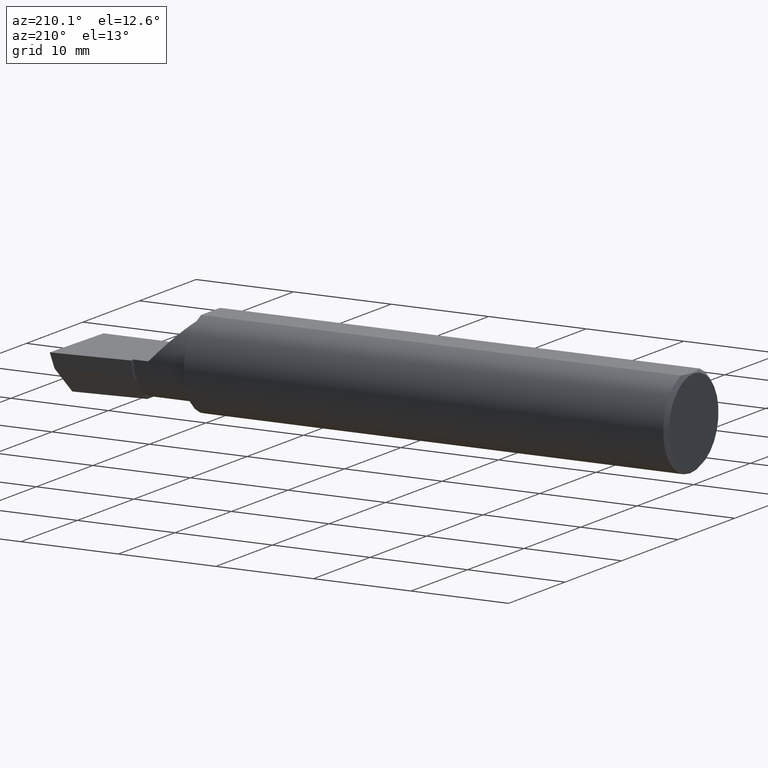
[diagram: clean part render]
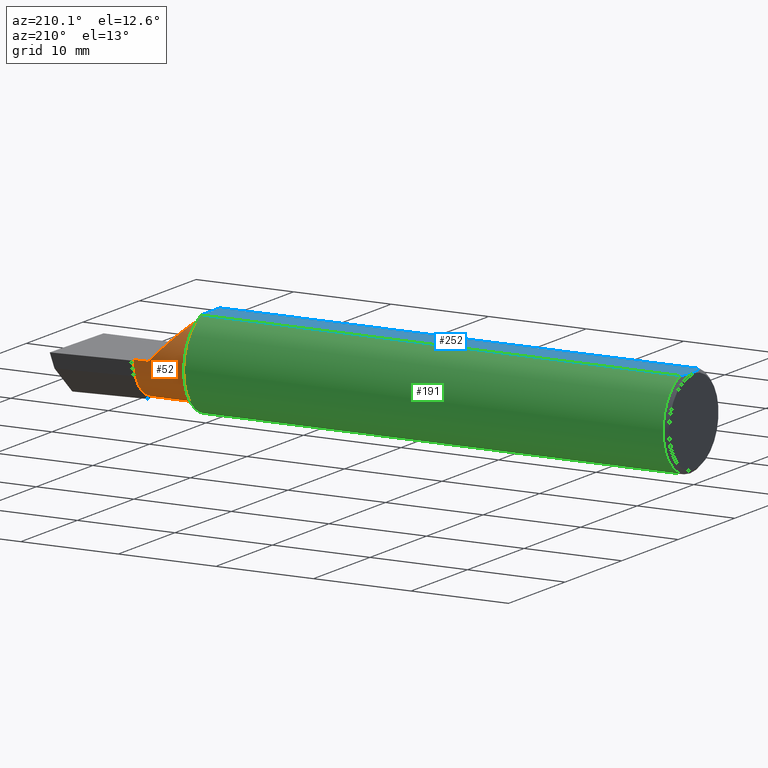
[diagram: same view with three faces highlighted in distinct colors, each labeled with its STEP entity id]
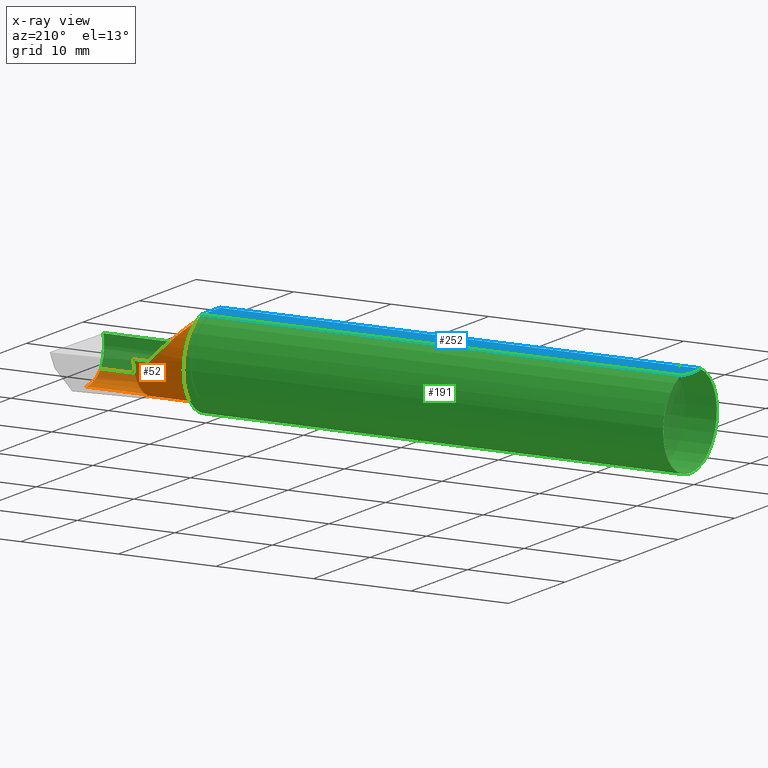
[diagram: x-ray of the same camera — body ghosted, the three highlighted faces saturated]
A machine part, auxiliary view with three faces highlighted in distinct colors.
The next image is the same camera in x-ray (body ghosted, the three faces saturated) — at least one of them is partly hidden behind the body in this view.
Their STEP definitions:

[orange] entity #52 — the highlighted cylindrical surface (partial cylindrical patch) has radius 4.0653 mm, axis along (-1, 0, -0).
#4 = DIRECTION ( 'NONE',  ( -6.829619984160658816E-18, -1.000000000000000000, 0.0000000000000000000 ) ) ;
#8 = EDGE_LOOP ( 'NONE', ( #43, #38, #304, #400, #542, #413, #258, #424, #107, #454 ) ) ;
#9 = VERTEX_POINT ( 'NONE', #123 ) ;
#11 = LINE ( 'NONE', #372, #162 ) ;
#31 = EDGE_CURVE ( 'NONE', #9, #97, #578, .T. ) ;
#38 = ORIENTED_EDGE ( 'NONE', *, *, #115, .T. ) ;
#43 = ORIENTED_EDGE ( 'NONE', *, *, #337, .F. ) ;
#47 = LINE ( 'NONE', #71, #171 ) ;
#52 = ADVANCED_FACE ( 'NONE', ( #533 ), #559, .T. ) ;
#56 = DIRECTION ( 'NONE',  ( 0.0000000000000000000, -1.000000000000000000, 0.0000000000000000000 ) ) ;
#71 = CARTESIAN_POINT ( 'NONE',  ( 1.093080678464946939E-18, 0.1226499999999999535, 3.267291166268304703E-16 ) ) ;
#79 = CARTESIAN_POINT ( 'NONE',  ( 2.474893613600468445, -0.03740000000000000269, -0.1600499999999999701 ) ) ;
#81 = CARTESIAN_POINT ( 'NONE',  ( 2.075000000000000178, -0.1454917112299465021, -0.1180346748349054287 ) ) ;
#97 = VERTEX_POINT ( 'NONE', #287 ) ;
#99 = VERTEX_POINT ( 'NONE', #111 ) ;
#106 = VERTEX_POINT ( 'NONE', #116 ) ;
#107 = ORIENTED_EDGE ( 'NONE', *, *, #331, .T. ) ;
#111 = CARTESIAN_POINT ( 'NONE',  ( 2.189999999999999947, 0.1226499999999999674, 3.267291166268305196E-16 ) ) ;
#115 = EDGE_CURVE ( 'NONE', #106, #264, #405, .T. ) ;
#116 = CARTESIAN_POINT ( 'NONE',  ( 2.477223734188808368, -0.1454917112299465021, -0.1180346748349054287 ) ) ;
#119 = VECTOR ( 'NONE', #355, 39.37007874015748143 ) ;
#123 = CARTESIAN_POINT ( 'NONE',  ( 2.474893613600468445, -0.03740000000000000269, -0.1600499999999999701 ) ) ;
#128 = CARTESIAN_POINT ( 'NONE',  ( 1.902393788885672565, -0.02584108761840661975, 0.2276062111143251077 ) ) ;
#130 = CARTESIAN_POINT ( 'NONE',  ( 1.959999999999999964, -0.1454917112299459747, -0.1180346748349059005 ) ) ;
#140 = CARTESIAN_POINT ( 'NONE',  ( 0.0000000000000000000, -0.03739999999999998881, 0.0000000000000000000 ) ) ;
#145 = CIRCLE ( 'NONE', #490, 0.1600499999999999701 ) ;
#162 = VECTOR ( 'NONE', #448, 39.37007874015748143 ) ;
#163 = DIRECTION ( 'NONE',  ( 0.0000000000000000000, -1.000000000000000000, 0.0000000000000000000 ) ) ;
#171 = VECTOR ( 'NONE', #297, 39.37007874015748143 ) ;
#176 = DIRECTION ( 'NONE',  ( -1.000000000000000000, 6.829619984160658046E-18, -0.0000000000000000000 ) ) ;
#182 = CARTESIAN_POINT ( 'NONE',  ( 2.189999999999999947, 0.09838681685089194218, -0.08472274115904374070 ) ) ;
#185 = VERTEX_POINT ( 'NONE', #230 ) ;
#210 = AXIS2_PLACEMENT_3D ( 'NONE', #140, #515, #4 ) ;
#218 = VERTEX_POINT ( 'NONE', #301 ) ;
#222 = CARTESIAN_POINT ( 'NONE',  ( 2.189999999999999947, -0.03740000000000000269, 0.0000000000000000000 ) ) ;
#230 = CARTESIAN_POINT ( 'NONE',  ( 2.189999999999999947, 0.05139684578702525403, -0.1331582617725060591 ) ) ;
#241 = CARTESIAN_POINT ( 'NONE',  ( 1.967758842172324663, 0.1226499999999999674, 0.1622411578276735378 ) ) ;
#244 = CIRCLE ( 'NONE', #473, 0.1600499999999999701 ) ;
#257 = EDGE_CURVE ( 'NONE', #218, #375, #547, .T. ) ;
#258 = ORIENTED_EDGE ( 'NONE', *, *, #294, .T. ) ;
#264 = VERTEX_POINT ( 'NONE', #130 ) ;
#272 = CARTESIAN_POINT ( 'NONE',  ( 1.959999999999999964, -0.1454917112299459192, 0.1180346748349059144 ) ) ;
#282 = DIRECTION ( 'NONE',  ( -1.000000000000000000, 5.691349986800549142E-18, -0.0000000000000000000 ) ) ;
#287 = CARTESIAN_POINT ( 'NONE',  ( 2.189999999999999947, -0.03740000000000000269, -0.1600499999999999701 ) ) ;
#291 =( BOUNDED_CURVE ( )  B_SPLINE_CURVE ( 3, ( #530, #512, #550, #79 ),
 .UNSPECIFIED., .F., .F. ) 
 B_SPLINE_CURVE_WITH_KNOTS ( ( 4, 4 ),
 ( 5.751779107031791405, 6.493234751459990406 ),
 .UNSPECIFIED. ) 
 CURVE ( )  GEOMETRIC_REPRESENTATION_ITEM ( )  RATIONAL_B_SPLINE_CURVE ( ( 1.000000000000000000, 0.9547092712975354667, 0.9547092712975354667, 1.000000000000000000 ) ) 
 REPRESENTATION_ITEM ( '' )  );
#292 = EDGE_CURVE ( 'NONE', #375, #99, #47, .T. ) ;
#294 = EDGE_CURVE ( 'NONE', #99, #587, #358, .T. ) ;
#297 = DIRECTION ( 'NONE',  ( 1.000000000000000000, -6.829619984160658046E-18, 0.0000000000000000000 ) ) ;
#301 = CARTESIAN_POINT ( 'NONE',  ( 2.011965325165096630, -0.1454917112299495829, 0.1180346748349020841 ) ) ;
#304 = ORIENTED_EDGE ( 'NONE', *, *, #421, .F. ) ;
#322 = EDGE_CURVE ( 'NONE', #185, #587, #244, .T. ) ;
#324 = AXIS2_PLACEMENT_3D ( 'NONE', #584, #496, #56 ) ;
#331 = EDGE_CURVE ( 'NONE', #185, #97, #145, .T. ) ;
#337 = EDGE_CURVE ( 'NONE', #106, #9, #291, .T. ) ;
#355 = DIRECTION ( 'NONE',  ( -1.000000000000000000, 6.829619984160658046E-18, -0.0000000000000000000 ) ) ;
#358 = CIRCLE ( 'NONE', #585, 0.1600499999999999701 ) ;
#362 = DIRECTION ( 'NONE',  ( 0.0000000000000000000, -1.000000000000000000, 0.0000000000000000000 ) ) ;
#372 = CARTESIAN_POINT ( 'NONE',  ( 2.075000000000000178, -0.1454917112299465021, 0.1180346748349054287 ) ) ;
#375 = VERTEX_POINT ( 'NONE', #543 ) ;
#384 = CARTESIAN_POINT ( 'NONE',  ( 2.129999999999999893, 0.1226499999999998841, 1.065442715258197396E-16 ) ) ;
#400 = ORIENTED_EDGE ( 'NONE', *, *, #566, .T. ) ;
#405 = LINE ( 'NONE', #81, #119 ) ;
#413 = ORIENTED_EDGE ( 'NONE', *, *, #292, .T. ) ;
#415 = CARTESIAN_POINT ( 'NONE',  ( 2.011965325165096630, -0.1454917112299495829, 0.1180346748349020841 ) ) ;
#421 = EDGE_CURVE ( 'NONE', #451, #264, #468, .T. ) ;
#422 = CARTESIAN_POINT ( 'NONE',  ( 2.189999999999999947, -0.03740000000000000269, 0.0000000000000000000 ) ) ;
#424 = ORIENTED_EDGE ( 'NONE', *, *, #322, .F. ) ;
#448 = DIRECTION ( 'NONE',  ( 1.000000000000000000, -6.829619984160658046E-18, 0.0000000000000000000 ) ) ;
#451 = VERTEX_POINT ( 'NONE', #272 ) ;
#454 = ORIENTED_EDGE ( 'NONE', *, *, #31, .F. ) ;
#464 = CARTESIAN_POINT ( 'NONE',  ( 2.500000000000000000, -0.03740000000000000269, -0.1600499999999999701 ) ) ;
#466 = CARTESIAN_POINT ( 'NONE',  ( 2.189999999999999947, -0.03740000000000000269, 0.0000000000000000000 ) ) ;
#468 = CIRCLE ( 'NONE', #324, 0.1600499999999999701 ) ;
#473 = AXIS2_PLACEMENT_3D ( 'NONE', #466, #494, #480 ) ;
#480 = DIRECTION ( 'NONE',  ( 0.0000000000000000000, -1.000000000000000000, 2.664535259100375697E-15 ) ) ;
#490 = AXIS2_PLACEMENT_3D ( 'NONE', #422, #590, #163 ) ;
#494 = DIRECTION ( 'NONE',  ( 1.000000000000000000, -6.829619984160658046E-18, 0.0000000000000000000 ) ) ;
#496 = DIRECTION ( 'NONE',  ( -1.000000000000000000, 6.829619984160658046E-18, -0.0000000000000000000 ) ) ;
#512 = CARTESIAN_POINT ( 'NONE',  ( 2.474646882977779683, -0.1156304438478837071, -0.1453804992321581779 ) ) ;
#515 = DIRECTION ( 'NONE',  ( -1.000000000000000000, 6.829619984160658046E-18, -0.0000000000000000000 ) ) ;
#530 = CARTESIAN_POINT ( 'NONE',  ( 2.477223734188808368, -0.1454917112299465021, -0.1180346748349054287 ) ) ;
#533 = FACE_OUTER_BOUND ( 'NONE', #8, .T. ) ;
#542 = ORIENTED_EDGE ( 'NONE', *, *, #257, .T. ) ;
#543 = CARTESIAN_POINT ( 'NONE',  ( 2.129999999999999893, 0.1226499999999998841, 1.065442715258197396E-16 ) ) ;
#547 =( BOUNDED_CURVE ( )  B_SPLINE_CURVE ( 3, ( #415, #128, #241, #384 ),
 .UNSPECIFIED., .F., .F. ) 
 B_SPLINE_CURVE_WITH_KNOTS ( ( 4, 4 ),
 ( 5.541729662751357921, 7.853981633974482790 ),
 .UNSPECIFIED. ) 
 CURVE ( )  GEOMETRIC_REPRESENTATION_ITEM ( )  RATIONAL_B_SPLINE_CURVE ( ( 1.000000000000000000, 0.6019254882129634332, 0.6019254882129634332, 1.000000000000000000 ) ) 
 REPRESENTATION_ITEM ( '' )  );
#550 = CARTESIAN_POINT ( 'NONE',  ( 2.473833329693936101, -0.07789060880782651408, -0.1600499999999999701 ) ) ;
#559 = CYLINDRICAL_SURFACE ( 'NONE', #210, 0.1600499999999999701 ) ;
#566 = EDGE_CURVE ( 'NONE', #451, #218, #11, .T. ) ;
#578 = LINE ( 'NONE', #464, #599 ) ;
#584 = CARTESIAN_POINT ( 'NONE',  ( 1.959999999999999964, -0.03740000000000000269, 0.0000000000000000000 ) ) ;
#585 = AXIS2_PLACEMENT_3D ( 'NONE', #222, #176, #362 ) ;
#587 = VERTEX_POINT ( 'NONE', #182 ) ;
#590 = DIRECTION ( 'NONE',  ( -1.000000000000000000, 6.829619984160658046E-18, -0.0000000000000000000 ) ) ;
#599 = VECTOR ( 'NONE', #282, 39.37007874015748143 ) ;

[blue] entity #252 — the highlighted planar face has unit normal (0, -0, -1).
#1 = ORIENTED_EDGE ( 'NONE', *, *, #39, .F. ) ;
#24 = CARTESIAN_POINT ( 'NONE',  ( 0.01125230581755086272, 0.05532998191409922023, 0.1753500000000000059 ) ) ;
#33 = CARTESIAN_POINT ( 'NONE',  ( 0.008244775919947424855, 0.04453482769755855164, 0.1753499999999999504 ) ) ;
#36 = CARTESIAN_POINT ( 'NONE',  ( 2.500000000000000000, 0.2373500000000000332, 0.1753499999999999504 ) ) ;
#39 = EDGE_CURVE ( 'NONE', #553, #524, #259, .T. ) ;
#53 = EDGE_CURVE ( 'NONE', #501, #553, #591, .T. ) ;
#59 = CARTESIAN_POINT ( 'NONE',  ( 0.004115035183746292881, 0.02255629470626744487, 0.1753499999999999781 ) ) ;
#65 = PLANE ( 'NONE',  #85 ) ;
#85 = AXIS2_PLACEMENT_3D ( 'NONE', #36, #406, #142 ) ;
#110 = CARTESIAN_POINT ( 'NONE',  ( 0.01499999999999997863, -0.06597272163553657975, 0.1753499999999999781 ) ) ;
#136 = FACE_OUTER_BOUND ( 'NONE', #486, .T. ) ;
#142 = DIRECTION ( 'NONE',  ( 0.0000000000000000000, 1.000000000000000000, -1.438723400918613551E-16 ) ) ;
#161 = EDGE_CURVE ( 'NONE', #524, #288, #582, .T. ) ;
#178 = LINE ( 'NONE', #213, #276 ) ;
#195 = ORIENTED_EDGE ( 'NONE', *, *, #161, .F. ) ;
#196 = CARTESIAN_POINT ( 'NONE',  ( 0.004093196532652216939, -0.02240707710020816909, 0.1753499999999999504 ) ) ;
#213 = CARTESIAN_POINT ( 'NONE',  ( 0.0000000000000000000, 0.06597272163553663527, 0.1753499999999999781 ) ) ;
#235 = EDGE_CURVE ( 'NONE', #288, #570, #178, .T. ) ;
#249 = CARTESIAN_POINT ( 'NONE',  ( 0.01499999999999999424, 0.06597272163553663527, 0.1753499999999999781 ) ) ;
#252 = ADVANCED_FACE ( 'NONE', ( #136 ), #65, .F. ) ;
#253 = DIRECTION ( 'NONE',  ( -6.829619984160658046E-18, -1.000000000000000000, 1.438723400918613551E-16 ) ) ;
#259 = B_SPLINE_CURVE_WITH_KNOTS ( 'NONE', 3,
 ( #588, #540, #450, #196, #285, #374 ),
 .UNSPECIFIED., .F., .F.,
 ( 4, 2, 4 ),
 ( 0.001779942938356815062, 0.002629978419973711019, 0.003480013901590607410 ),
 .UNSPECIFIED. ) ;
#276 = VECTOR ( 'NONE', #589, 39.37007874015748143 ) ;
#285 = CARTESIAN_POINT ( 'NONE',  ( 0.003000000000000172667, -0.01126410975715121283, 0.1753500000000000059 ) ) ;
#288 = VERTEX_POINT ( 'NONE', #382 ) ;
#363 = CARTESIAN_POINT ( 'NONE',  ( 0.0000000000000000000, -0.06597272163553657975, 0.1753499999999999781 ) ) ;
#370 = CARTESIAN_POINT ( 'NONE',  ( 0.003000000000000169632, 0.01127363201155560934, 0.1753499999999999781 ) ) ;
#374 = CARTESIAN_POINT ( 'NONE',  ( 0.003000000000000218638, 2.334609556160449697E-17, 0.1753499999999999781 ) ) ;
#382 = CARTESIAN_POINT ( 'NONE',  ( 0.01499999999999999424, 0.06597272163553663527, 0.1753499999999999781 ) ) ;
#396 = EDGE_CURVE ( 'NONE', #570, #501, #580, .T. ) ;
#399 = DIRECTION ( 'NONE',  ( -1.000000000000000000, -0.0000000000000000000, -0.0000000000000000000 ) ) ;
#406 = DIRECTION ( 'NONE',  ( 0.0000000000000000000, -1.438723400918613551E-16, -1.000000000000000000 ) ) ;
#439 = CARTESIAN_POINT ( 'NONE',  ( 0.003000000000000218638, 2.334609556160449697E-17, 0.1753499999999999781 ) ) ;
#440 = ORIENTED_EDGE ( 'NONE', *, *, #396, .F. ) ;
#442 = ORIENTED_EDGE ( 'NONE', *, *, #235, .F. ) ;
#450 = CARTESIAN_POINT ( 'NONE',  ( 0.008227791779583789808, -0.04447712204611815878, 0.1753499999999999781 ) ) ;
#485 = VECTOR ( 'NONE', #253, 39.37007874015748143 ) ;
#486 = EDGE_LOOP ( 'NONE', ( #440, #442, #195, #1, #488 ) ) ;
#488 = ORIENTED_EDGE ( 'NONE', *, *, #53, .F. ) ;
#500 = CARTESIAN_POINT ( 'NONE',  ( 1.949999999999999956, 0.06597272163553663527, 0.1753499999999999781 ) ) ;
#501 = VERTEX_POINT ( 'NONE', #572 ) ;
#521 = CARTESIAN_POINT ( 'NONE',  ( 0.003000000000000218638, 2.334609556160449697E-17, 0.1753499999999999781 ) ) ;
#524 = VERTEX_POINT ( 'NONE', #439 ) ;
#540 = CARTESIAN_POINT ( 'NONE',  ( 0.01128414053810044941, -0.05542038647445821781, 0.1753499999999999781 ) ) ;
#553 = VERTEX_POINT ( 'NONE', #110 ) ;
#570 = VERTEX_POINT ( 'NONE', #500 ) ;
#572 = CARTESIAN_POINT ( 'NONE',  ( 1.949999999999999956, -0.06597272163553659363, 0.1753499999999999781 ) ) ;
#580 = LINE ( 'NONE', #592, #485 ) ;
#582 = B_SPLINE_CURVE_WITH_KNOTS ( 'NONE', 3,
 ( #521, #370, #59, #33, #24, #249 ),
 .UNSPECIFIED., .F., .F.,
 ( 4, 2, 4 ),
 ( 0.003480013901590607410, 0.004330767971208083697, 0.005181522040825559984 ),
 .UNSPECIFIED. ) ;
#586 = VECTOR ( 'NONE', #399, 39.37007874015748143 ) ;
#588 = CARTESIAN_POINT ( 'NONE',  ( 0.01499999999999997863, -0.06597272163553657975, 0.1753499999999999781 ) ) ;
#589 = DIRECTION ( 'NONE',  ( 1.000000000000000000, 0.0000000000000000000, 0.0000000000000000000 ) ) ;
#591 = LINE ( 'NONE', #363, #586 ) ;
#592 = CARTESIAN_POINT ( 'NONE',  ( 1.949999999999999956, 0.2373500000000000332, 0.1753499999999999504 ) ) ;

[green] entity #191 — the highlighted cylindrical surface (partial cylindrical patch) has radius 4.7587 mm, axis along (-1, -0, -0).
#11 = LINE ( 'NONE', #372, #162 ) ;
#13 = CARTESIAN_POINT ( 'NONE',  ( 1.958780002058964076, -0.1452129146512406155, 0.1183784924451706522 ) ) ;
#15 = ORIENTED_EDGE ( 'NONE', *, *, #328, .F. ) ;
#18 = CARTESIAN_POINT ( 'NONE',  ( 0.01499999999999999424, 0.0000000000000000000, 0.0000000000000000000 ) ) ;
#32 = CARTESIAN_POINT ( 'NONE',  ( 2.477223734188808368, -0.1454917112299465021, -0.1180346748349054287 ) ) ;
#41 = DIRECTION ( 'NONE',  ( -1.000000000000000000, -0.0000000000000000000, -0.0000000000000000000 ) ) ;
#50 = CARTESIAN_POINT ( 'NONE',  ( 1.957909242887170498, -0.1445870704379410010, -0.1191421054870966528 ) ) ;
#53 = EDGE_CURVE ( 'NONE', #501, #553, #591, .T. ) ;
#54 = CARTESIAN_POINT ( 'NONE',  ( 1.950483388365423787, -0.1180160148311101415, -0.1458664675357417562 ) ) ;
#55 = CARTESIAN_POINT ( 'NONE',  ( 1.959343186359710165, -0.1454917112302220872, 0.1180346748345677127 ) ) ;
#63 = ORIENTED_EDGE ( 'NONE', *, *, #557, .T. ) ;
#64 = ORIENTED_EDGE ( 'NONE', *, *, #189, .F. ) ;
#70 = ORIENTED_EDGE ( 'NONE', *, *, #386, .F. ) ;
#81 = CARTESIAN_POINT ( 'NONE',  ( 2.075000000000000178, -0.1454917112299465021, -0.1180346748349054287 ) ) ;
#86 = CARTESIAN_POINT ( 'NONE',  ( 1.952845212421890020, -0.1330145888620355987, 0.1320338710448782094 ) ) ;
#89 = ORIENTED_EDGE ( 'NONE', *, *, #115, .F. ) ;
#95 = DIRECTION ( 'NONE',  ( 1.000000000000000000, -6.829619984160658046E-18, 0.0000000000000000000 ) ) ;
#102 = CARTESIAN_POINT ( 'NONE',  ( 1.949999999999999956, -0.1013606951871659639, 0.1575627873933893863 ) ) ;
#106 = VERTEX_POINT ( 'NONE', #116 ) ;
#110 = CARTESIAN_POINT ( 'NONE',  ( 0.01499999999999997863, -0.06597272163553657975, 0.1753499999999999781 ) ) ;
#114 = CARTESIAN_POINT ( 'NONE',  ( 1.959999999999999964, -0.1454917112299459192, 0.1180346748349059144 ) ) ;
#115 = EDGE_CURVE ( 'NONE', #106, #264, #405, .T. ) ;
#116 = CARTESIAN_POINT ( 'NONE',  ( 2.477223734188808368, -0.1454917112299465021, -0.1180346748349054287 ) ) ;
#117 = CARTESIAN_POINT ( 'NONE',  ( 0.01499999999999999424, 0.0000000000000000000, 0.0000000000000000000 ) ) ;
#119 = VECTOR ( 'NONE', #355, 39.37007874015748143 ) ;
#122 = CARTESIAN_POINT ( 'NONE',  ( 1.958770022656896037, -0.1452078353828883672, -0.1183847404910809836 ) ) ;
#130 = CARTESIAN_POINT ( 'NONE',  ( 1.959999999999999964, -0.1454917112299459747, -0.1180346748349059005 ) ) ;
#137 = CARTESIAN_POINT ( 'NONE',  ( 1.956664569472227777, -0.1431262185210681326, -0.1208975608635242949 ) ) ;
#148 = CARTESIAN_POINT ( 'NONE',  ( 2.011965325165096630, -0.1454917112299495829, 0.1180346748349020841 ) ) ;
#154 = EDGE_CURVE ( 'NONE', #501, #343, #204, .T. ) ;
#160 = FACE_OUTER_BOUND ( 'NONE', #419, .T. ) ;
#162 = VECTOR ( 'NONE', #448, 39.37007874015748143 ) ;
#166 = DIRECTION ( 'NONE',  ( 0.0000000000000000000, 0.0000000000000000000, 1.000000000000000000 ) ) ;
#172 = DIRECTION ( 'NONE',  ( 0.0000000000000000000, 0.0000000000000000000, 1.000000000000000000 ) ) ;
#174 = CARTESIAN_POINT ( 'NONE',  ( 1.954992410154055671, -0.1399157128067675115, -0.1246181391956575207 ) ) ;
#178 = LINE ( 'NONE', #213, #276 ) ;
#183 = AXIS2_PLACEMENT_3D ( 'NONE', #237, #377, #536 ) ;
#184 = DIRECTION ( 'NONE',  ( 0.0000000000000000000, 1.000000000000000000, 0.0000000000000000000 ) ) ;
#187 = CARTESIAN_POINT ( 'NONE',  ( 2.129999999999999893, -0.1873499999999999888, 1.065442715258197396E-16 ) ) ;
#189 = EDGE_CURVE ( 'NONE', #226, #553, #290, .T. ) ;
#191 = ADVANCED_FACE ( 'NONE', ( #160 ), #390, .T. ) ;
#199 = CARTESIAN_POINT ( 'NONE',  ( 3.377502344341257155E-32, -0.1873499999999999610, 3.267291166268304703E-16 ) ) ;
#204 = CIRCLE ( 'NONE', #243, 0.1873499999999999888 ) ;
#213 = CARTESIAN_POINT ( 'NONE',  ( 0.0000000000000000000, 0.06597272163553663527, 0.1753499999999999781 ) ) ;
#217 = CARTESIAN_POINT ( 'NONE',  ( 1.954404192622242409, -0.1382376748423442825, -0.1264781021717289455 ) ) ;
#218 = VERTEX_POINT ( 'NONE', #301 ) ;
#221 = CIRCLE ( 'NONE', #330, 0.1873499999999999888 ) ;
#223 = CARTESIAN_POINT ( 'NONE',  ( 1.949999999999999956, -0.1013606951871659639, -0.1575627873933893863 ) ) ;
#226 = VERTEX_POINT ( 'NONE', #545 ) ;
#227 = CARTESIAN_POINT ( 'NONE',  ( 1.952858161161656891, -0.1330631366558192585, -0.1319833113027353566 ) ) ;
#235 = EDGE_CURVE ( 'NONE', #288, #570, #178, .T. ) ;
#237 = CARTESIAN_POINT ( 'NONE',  ( 0.0000000000000000000, 0.0000000000000000000, 0.0000000000000000000 ) ) ;
#243 = AXIS2_PLACEMENT_3D ( 'NONE', #539, #95, #184 ) ;
#263 = CARTESIAN_POINT ( 'NONE',  ( 2.086590019116437045, -0.1873499999999999888, 0.04340998088356271684 ) ) ;
#264 = VERTEX_POINT ( 'NONE', #130 ) ;
#272 = CARTESIAN_POINT ( 'NONE',  ( 1.959999999999999964, -0.1454917112299459192, 0.1180346748349059144 ) ) ;
#275 = CARTESIAN_POINT ( 'NONE',  ( 2.490625440078237940, -0.1873499999999999888, 6.926778495256700803E-17 ) ) ;
#276 = VECTOR ( 'NONE', #589, 39.37007874015748143 ) ;
#279 = CARTESIAN_POINT ( 'NONE',  ( 2.480648201915109485, -0.1728409665178087251, -0.08432347972837191119 ) ) ;
#281 = CARTESIAN_POINT ( 'NONE',  ( 1.957567572594821836, -0.1442269357022580301, -0.1195781817710038913 ) ) ;
#286 = ORIENTED_EDGE ( 'NONE', *, *, #438, .T. ) ;
#288 = VERTEX_POINT ( 'NONE', #382 ) ;
#289 = CARTESIAN_POINT ( 'NONE',  ( 1.956674049009440752, -0.1431412424162798736, 0.1208797671938532381 ) ) ;
#290 = CIRCLE ( 'NONE', #353, 0.1873499999999999888 ) ;
#299 = CARTESIAN_POINT ( 'NONE',  ( 1.952152469637250531, -0.1294082664154919127, -0.1355718222394689809 ) ) ;
#301 = CARTESIAN_POINT ( 'NONE',  ( 2.011965325165096630, -0.1454917112299495829, 0.1180346748349020841 ) ) ;
#302 = AXIS2_PLACEMENT_3D ( 'NONE', #18, #323, #172 ) ;
#308 = B_SPLINE_CURVE_WITH_KNOTS ( 'NONE', 3,
 ( #360, #532, #122, #50, #281, #137, #443, #174, #217, #227, #299, #54, #347, #435 ),
 .UNSPECIFIED., .F., .F.,
 ( 4, 2, 2, 2, 2, 2, 4 ),
 ( 1.967643395654746293E-07, 5.001319782656564559E-05, 9.982963131356581887E-05, 0.0001994624982875669108, 0.0003987282322355699621, 0.0007972597001315706979, 0.001594322635923571627 ),
 .UNSPECIFIED. ) ;
#309 = CARTESIAN_POINT ( 'NONE',  ( 1.957580800664965759, -0.1442412736056263578, 0.1195608849622529779 ) ) ;
#311 = ORIENTED_EDGE ( 'NONE', *, *, #154, .F. ) ;
#313 = CARTESIAN_POINT ( 'NONE',  ( 2.485293537526806595, -0.1873500000000000998, -0.04340998088356429196 ) ) ;
#320 = DIRECTION ( 'NONE',  ( 1.000000000000000000, -6.829619984160658046E-18, 0.0000000000000000000 ) ) ;
#323 = DIRECTION ( 'NONE',  ( -1.000000000000000000, -0.0000000000000000000, -0.0000000000000000000 ) ) ;
#325 = ORIENTED_EDGE ( 'NONE', *, *, #566, .F. ) ;
#327 = ORIENTED_EDGE ( 'NONE', *, *, #53, .T. ) ;
#328 = EDGE_CURVE ( 'NONE', #343, #451, #531, .T. ) ;
#330 = AXIS2_PLACEMENT_3D ( 'NONE', #492, #320, #564 ) ;
#343 = VERTEX_POINT ( 'NONE', #102 ) ;
#345 = ORIENTED_EDGE ( 'NONE', *, *, #535, .T. ) ;
#347 = CARTESIAN_POINT ( 'NONE',  ( 1.949999999999999956, -0.1099295023601651045, -0.1520504436074708032 ) ) ;
#352 = CIRCLE ( 'NONE', #302, 0.1873499999999999888 ) ;
#353 = AXIS2_PLACEMENT_3D ( 'NONE', #117, #41, #166 ) ;
#355 = DIRECTION ( 'NONE',  ( -1.000000000000000000, 6.829619984160658046E-18, -0.0000000000000000000 ) ) ;
#360 = CARTESIAN_POINT ( 'NONE',  ( 1.959999999999999964, -0.1454917112299459747, -0.1180346748349059005 ) ) ;
#363 = CARTESIAN_POINT ( 'NONE',  ( 0.0000000000000000000, -0.06597272163553657975, 0.1753499999999999781 ) ) ;
#372 = CARTESIAN_POINT ( 'NONE',  ( 2.075000000000000178, -0.1454917112299465021, 0.1180346748349054287 ) ) ;
#376 = VECTOR ( 'NONE', #548, 39.37007874015748143 ) ;
#377 = DIRECTION ( 'NONE',  ( -1.000000000000000000, -0.0000000000000000000, -0.0000000000000000000 ) ) ;
#379 = CARTESIAN_POINT ( 'NONE',  ( 2.129999999999999893, -0.1873499999999999888, 1.065442715258197396E-16 ) ) ;
#382 = CARTESIAN_POINT ( 'NONE',  ( 0.01499999999999999424, 0.06597272163553663527, 0.1753499999999999781 ) ) ;
#386 = EDGE_CURVE ( 'NONE', #493, #570, #221, .T. ) ;
#387 = CARTESIAN_POINT ( 'NONE',  ( 1.954402240695038540, -0.1382337250035439169, 0.1264828452200240372 ) ) ;
#390 = CYLINDRICAL_SURFACE ( 'NONE', #183, 0.1873499999999999888 ) ;
#399 = DIRECTION ( 'NONE',  ( -1.000000000000000000, -0.0000000000000000000, -0.0000000000000000000 ) ) ;
#401 = CARTESIAN_POINT ( 'NONE',  ( 1.954997648858496584, -0.1399294360413327887, 0.1246027428089602068 ) ) ;
#405 = LINE ( 'NONE', #81, #119 ) ;
#407 = ORIENTED_EDGE ( 'NONE', *, *, #444, .F. ) ;
#412 = LINE ( 'NONE', #199, #376 ) ;
#419 = EDGE_LOOP ( 'NONE', ( #89, #286, #63, #345, #325, #15, #311, #327, #64, #478, #538, #70, #407 ) ) ;
#427 = CARTESIAN_POINT ( 'NONE',  ( 1.950000000000000400, -0.1100056335683312903, 0.1520014681335481455 ) ) ;
#429 = EDGE_CURVE ( 'NONE', #288, #226, #352, .T. ) ;
#435 = CARTESIAN_POINT ( 'NONE',  ( 1.949999999999999956, -0.1013606951871659639, -0.1575627873933893863 ) ) ;
#436 =( BOUNDED_CURVE ( )  B_SPLINE_CURVE ( 3, ( #32, #279, #313, #275 ),
 .UNSPECIFIED., .F., .F. ) 
 B_SPLINE_CURVE_WITH_KNOTS ( ( 4, 4 ),
 ( 0.6791649766272935818, 1.360746882514492606 ),
 .UNSPECIFIED. ) 
 CURVE ( )  GEOMETRIC_REPRESENTATION_ITEM ( )  RATIONAL_B_SPLINE_CURVE ( ( 1.000000000000000000, 0.9616603987079548332, 0.9616603987079548332, 1.000000000000000000 ) ) 
 REPRESENTATION_ITEM ( '' )  );
#438 = EDGE_CURVE ( 'NONE', #106, #581, #436, .T. ) ;
#443 = CARTESIAN_POINT ( 'NONE',  ( 1.956208682939483579, -0.1423361566194918104, -0.1218275716760990057 ) ) ;
#444 = EDGE_CURVE ( 'NONE', #264, #493, #308, .T. ) ;
#445 = CARTESIAN_POINT ( 'NONE',  ( 2.045676520271630494, -0.1728409665178097521, 0.08432347972836901073 ) ) ;
#448 = DIRECTION ( 'NONE',  ( 1.000000000000000000, -6.829619984160658046E-18, 0.0000000000000000000 ) ) ;
#451 = VERTEX_POINT ( 'NONE', #272 ) ;
#456 = CARTESIAN_POINT ( 'NONE',  ( 1.956216587669450169, -0.1423502170013161428, 0.1218111458006553433 ) ) ;
#478 = ORIENTED_EDGE ( 'NONE', *, *, #429, .F. ) ;
#487 = CARTESIAN_POINT ( 'NONE',  ( 1.949999999999999956, -0.1013606951871659639, 0.1575627873933893863 ) ) ;
#492 = CARTESIAN_POINT ( 'NONE',  ( 1.949999999999999956, 0.0000000000000000000, 0.0000000000000000000 ) ) ;
#493 = VERTEX_POINT ( 'NONE', #223 ) ;
#500 = CARTESIAN_POINT ( 'NONE',  ( 1.949999999999999956, 0.06597272163553663527, 0.1753499999999999781 ) ) ;
#501 = VERTEX_POINT ( 'NONE', #572 ) ;
#517 = CARTESIAN_POINT ( 'NONE',  ( 1.952149571221041047, -0.1293863363941678835, 0.1355911774285947780 ) ) ;
#527 = CARTESIAN_POINT ( 'NONE',  ( 1.957921033727478388, -0.1445976381173489367, 0.1191292621734223456 ) ) ;
#531 = B_SPLINE_CURVE_WITH_KNOTS ( 'NONE', 3,
 ( #487, #427, #596, #517, #86, #387, #401, #456, #289, #309, #527, #13, #55, #114 ),
 .UNSPECIFIED., .F., .F.,
 ( 4, 2, 2, 2, 2, 2, 4 ),
 ( 0.0006605532644857109231, 0.001446564801351182903, 0.001839570569783919272, 0.002036073454000290276, 0.002134324896108479464, 0.002183450617162578829, 0.002232576338216678193 ),
 .UNSPECIFIED. ) ;
#532 = CARTESIAN_POINT ( 'NONE',  ( 1.959335809113330829, -0.1454917112299460302, -0.1180346748349059977 ) ) ;
#535 = EDGE_CURVE ( 'NONE', #568, #218, #597, .T. ) ;
#536 = DIRECTION ( 'NONE',  ( 0.0000000000000000000, 0.0000000000000000000, 1.000000000000000000 ) ) ;
#538 = ORIENTED_EDGE ( 'NONE', *, *, #235, .T. ) ;
#539 = CARTESIAN_POINT ( 'NONE',  ( 1.949999999999999956, 0.0000000000000000000, 0.0000000000000000000 ) ) ;
#541 = CARTESIAN_POINT ( 'NONE',  ( 2.490625440078237940, -0.1873499999999999888, 6.926778495256700803E-17 ) ) ;
#545 = CARTESIAN_POINT ( 'NONE',  ( 0.01499999999999999424, 0.0000000000000000000, -0.1873499999999999888 ) ) ;
#548 = DIRECTION ( 'NONE',  ( -1.000000000000000000, -0.0000000000000000000, -0.0000000000000000000 ) ) ;
#553 = VERTEX_POINT ( 'NONE', #110 ) ;
#557 = EDGE_CURVE ( 'NONE', #581, #568, #412, .T. ) ;
#564 = DIRECTION ( 'NONE',  ( 0.0000000000000000000, 1.000000000000000000, 0.0000000000000000000 ) ) ;
#566 = EDGE_CURVE ( 'NONE', #451, #218, #11, .T. ) ;
#568 = VERTEX_POINT ( 'NONE', #379 ) ;
#570 = VERTEX_POINT ( 'NONE', #500 ) ;
#572 = CARTESIAN_POINT ( 'NONE',  ( 1.949999999999999956, -0.06597272163553659363, 0.1753499999999999781 ) ) ;
#581 = VERTEX_POINT ( 'NONE', #541 ) ;
#586 = VECTOR ( 'NONE', #399, 39.37007874015748143 ) ;
#589 = DIRECTION ( 'NONE',  ( 1.000000000000000000, 0.0000000000000000000, 0.0000000000000000000 ) ) ;
#591 = LINE ( 'NONE', #363, #586 ) ;
#596 = CARTESIAN_POINT ( 'NONE',  ( 1.950493306168248564, -0.1180879943980260305, 0.1458023451353286093 ) ) ;
#597 =( BOUNDED_CURVE ( )  B_SPLINE_CURVE ( 3, ( #187, #263, #445, #148 ),
 .UNSPECIFIED., .F., .T. ) 
 B_SPLINE_CURVE_WITH_KNOTS ( ( 4, 4 ),
 ( 4.712388980384689674, 5.393970886271864273 ),
 .UNSPECIFIED. ) 
 CURVE ( )  GEOMETRIC_REPRESENTATION_ITEM ( )  RATIONAL_B_SPLINE_CURVE ( ( 1.000000000000000000, 0.9616603987079574978, 0.9616603987079574978, 1.000000000000000000 ) ) 
 REPRESENTATION_ITEM ( '' )  );